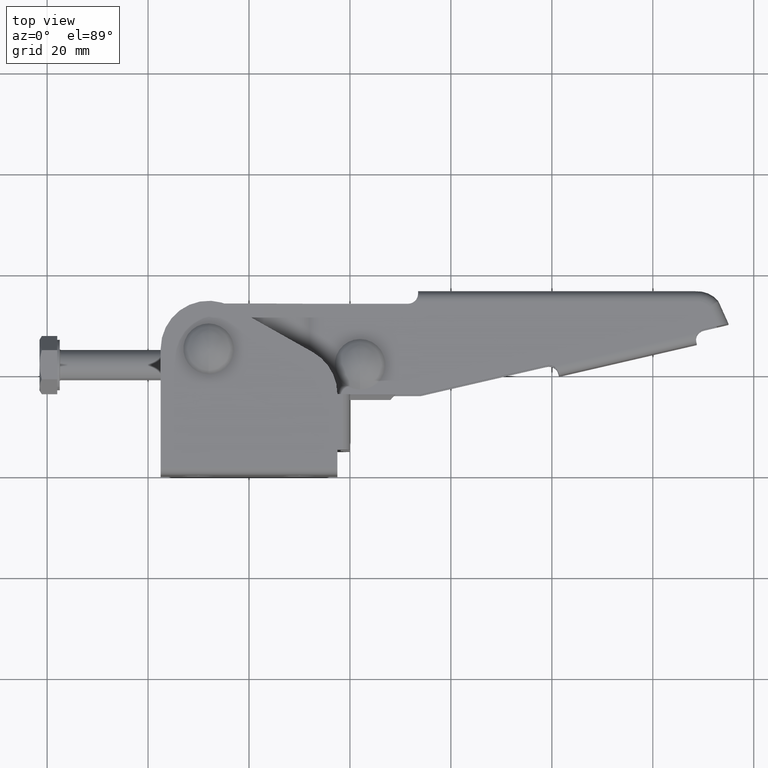
[diagram: clean part render]
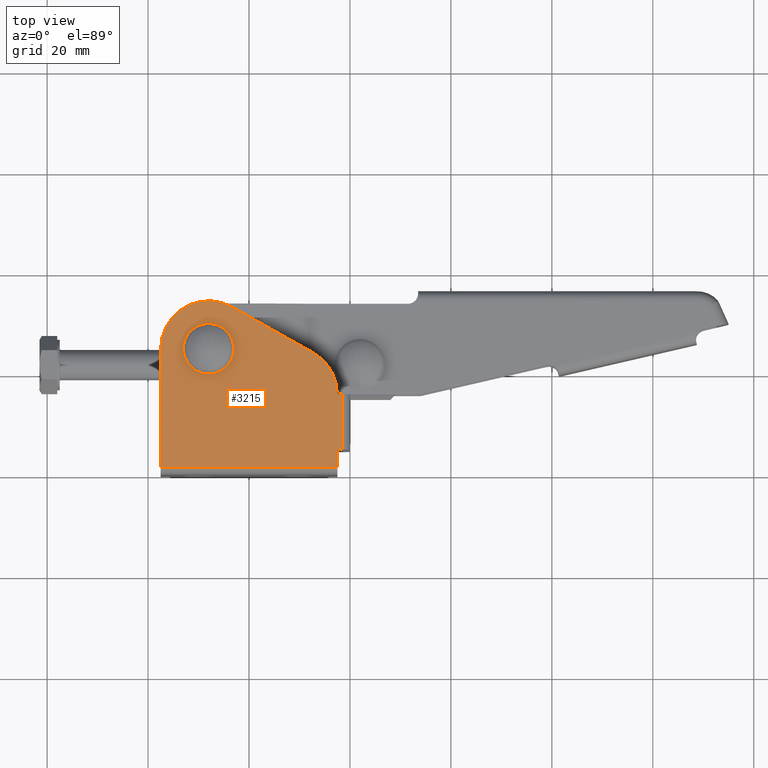
[diagram: same view with one face highlighted and labeled with its STEP entity id]
A machine part, top view. The second image highlights one B-rep face of the part: STEP entity #3215.
In plain terms, the highlighted planar face has unit normal (0, -0, -1).
Its self-contained STEP definition (entity closure, byte-faithful):
#57 = CARTESIAN_POINT ( 'NONE',  ( 17.50000000000000000, 5.000000000000000000, 14.00000000000000500 ) ) ;
#76 = VECTOR ( 'NONE', #4889, 1000.000000000000000 ) ;
#181 = ORIENTED_EDGE ( 'NONE', *, *, #4840, .F. ) ;
#195 = DIRECTION ( 'NONE',  ( 0.0000000000000000000, 1.000000000000000000, -1.826024711554533400E-016 ) ) ;
#237 = DIRECTION ( 'NONE',  ( 0.0000000000000000000, 1.000000000000000000, -1.826024711554533400E-016 ) ) ;
#292 = CARTESIAN_POINT ( 'NONE',  ( 17.50000000000000000, 4.999999992330360000, 14.00000000000000400 ) ) ;
#325 = VECTOR ( 'NONE', #3369, 1000.000000000000000 ) ;
#334 = CIRCLE ( 'NONE', #3872, 5.000000001240477100 ) ;
#392 = DIRECTION ( 'NONE',  ( 0.0000000000000000000, 0.0000000000000000000, 1.000000000000000000 ) ) ;
#416 = CARTESIAN_POINT ( 'NONE',  ( -17.50000000000000000, 38.35080088373390300, 14.00000000000000000 ) ) ;
#630 = VERTEX_POINT ( 'NONE', #6266 ) ;
#639 = CARTESIAN_POINT ( 'NONE',  ( -3.342518223118695600, 33.27996760306676500, 14.00000000000000000 ) ) ;
#691 = CARTESIAN_POINT ( 'NONE',  ( 18.59201648339206900, 5.000000000000000900, 14.00000000000000500 ) ) ;
#835 = AXIS2_PLACEMENT_3D ( 'NONE', #6804, #3513, #237 ) ;
#861 = PLANE ( 'NONE',  #2543 ) ;
#1029 = DIRECTION ( 'NONE',  ( 0.0000000000000000000, 0.0000000000000000000, 1.000000000000000000 ) ) ;
#1059 = CARTESIAN_POINT ( 'NONE',  ( 17.50000000000000000, 16.00000000000000000, 14.00000000000000200 ) ) ;
#1082 = EDGE_CURVE ( 'NONE', #1831, #6965, #4696, .T. ) ;
#1096 = VECTOR ( 'NONE', #5278, 1000.000000000000000 ) ;
#1136 = CARTESIAN_POINT ( 'NONE',  ( -17.50000000000000000, 1.417983516607936400, 14.00000000000000500 ) ) ;
#1400 = EDGE_CURVE ( 'NONE', #6585, #6744, #1681, .T. ) ;
#1411 = DIRECTION ( 'NONE',  ( 0.0000000000000000000, 1.000000000000000000, -1.241390060575497800E-016 ) ) ;
#1522 = CARTESIAN_POINT ( 'NONE',  ( 18.59201648339207600, 16.00000000000000000, 14.00000000000000200 ) ) ;
#1559 = ORIENTED_EDGE ( 'NONE', *, *, #5769, .T. ) ;
#1681 = LINE ( 'NONE', #57, #4435 ) ;
#1831 = VERTEX_POINT ( 'NONE', #4523 ) ;
#1905 = ORIENTED_EDGE ( 'NONE', *, *, #6827, .T. ) ;
#1912 = CARTESIAN_POINT ( 'NONE',  ( -8.000000000000000000, 19.99999999875952400, 14.00000000000000200 ) ) ;
#2056 = DIRECTION ( 'NONE',  ( -0.8715755371245493800, 0.4902612396325587400, -6.086054299652807800E-017 ) ) ;
#2133 = CARTESIAN_POINT ( 'NONE',  ( -8.000000000000000000, 30.00000000124048000, 14.00000000000000200 ) ) ;
#2325 = CARTESIAN_POINT ( 'NONE',  ( -17.50000000000000000, 25.00000000000000000, 14.00000000000000200 ) ) ;
#2435 = EDGE_LOOP ( 'NONE', ( #4807, #6808 ) ) ;
#2481 = CARTESIAN_POINT ( 'NONE',  ( 12.65748177755726900, 24.27996760209374100, 14.00000000000000200 ) ) ;
#2543 = AXIS2_PLACEMENT_3D ( 'NONE', #5229, #4708, #1411 ) ;
#2593 = ORIENTED_EDGE ( 'NONE', *, *, #1082, .F. ) ;
#2604 = ORIENTED_EDGE ( 'NONE', *, *, #4907, .F. ) ;
#2755 = ORIENTED_EDGE ( 'NONE', *, *, #6881, .F. ) ;
#3215 = ADVANCED_FACE ( 'NONE', ( #6021, #3454 ), #861, .F. ) ;
#3320 = EDGE_LOOP ( 'NONE', ( #1559, #2593, #5750, #3596, #2755, #4775, #2604, #1905, #181 ) ) ;
#3369 = DIRECTION ( 'NONE',  ( -1.000000000000000000, -0.0000000000000000000, -0.0000000000000000000 ) ) ;
#3454 = FACE_OUTER_BOUND ( 'NONE', #3320, .T. ) ;
#3466 = DIRECTION ( 'NONE',  ( 0.0000000000000000000, -1.241390060575497800E-016, -1.000000000000000000 ) ) ;
#3511 = VERTEX_POINT ( 'NONE', #2325 ) ;
#3513 = DIRECTION ( 'NONE',  ( 0.0000000000000000000, -1.241390060575497800E-016, -1.000000000000000000 ) ) ;
#3596 = ORIENTED_EDGE ( 'NONE', *, *, #1400, .F. ) ;
#3635 = VECTOR ( 'NONE', #5913, 1000.000000000000000 ) ;
#3668 = CARTESIAN_POINT ( 'NONE',  ( -8.000000000000000000, 25.00000000000000000, 14.00000000000000200 ) ) ;
#3816 = DIRECTION ( 'NONE',  ( -1.000000000000000000, 0.0000000000000000000, 0.0000000000000000000 ) ) ;
#3872 = AXIS2_PLACEMENT_3D ( 'NONE', #4324, #1029, #4869 ) ;
#3880 = DIRECTION ( 'NONE',  ( -1.000000000000000000, 0.0000000000000000000, 0.0000000000000000000 ) ) ;
#3993 = LINE ( 'NONE', #5332, #5265 ) ;
#4035 = LINE ( 'NONE', #6918, #1096 ) ;
#4227 = DIRECTION ( 'NONE',  ( 1.000000000000000000, 0.0000000000000000000, 0.0000000000000000000 ) ) ;
#4324 = CARTESIAN_POINT ( 'NONE',  ( -8.000000000000000000, 25.00000000000000000, 14.00000000000000200 ) ) ;
#4435 = VECTOR ( 'NONE', #3880, 1000.000000000000000 ) ;
#4516 = CARTESIAN_POINT ( 'NONE',  ( 18.59201648339207600, 16.00000000000000000, 14.00000000000000200 ) ) ;
#4523 = CARTESIAN_POINT ( 'NONE',  ( 17.50000000000000000, 1.417983516607932600, 14.00000000000000400 ) ) ;
#4696 = LINE ( 'NONE', #1136, #325 ) ;
#4708 = DIRECTION ( 'NONE',  ( 0.0000000000000000000, -1.241390060575497800E-016, -1.000000000000000000 ) ) ;
#4756 = LINE ( 'NONE', #1059, #6040 ) ;
#4775 = ORIENTED_EDGE ( 'NONE', *, *, #6955, .T. ) ;
#4807 = ORIENTED_EDGE ( 'NONE', *, *, #5084, .F. ) ;
#4840 = EDGE_CURVE ( 'NONE', #3511, #5917, #6510, .T. ) ;
#4869 = DIRECTION ( 'NONE',  ( 1.000000000000000000, 0.0000000000000000000, 0.0000000000000000000 ) ) ;
#4889 = DIRECTION ( 'NONE',  ( 0.0000000000000000000, -1.000000000000000000, 1.241390060575497800E-016 ) ) ;
#4907 = EDGE_CURVE ( 'NONE', #4994, #630, #6170, .T. ) ;
#4994 = VERTEX_POINT ( 'NONE', #2481 ) ;
#5051 = EDGE_CURVE ( 'NONE', #6744, #1831, #4035, .T. ) ;
#5084 = EDGE_CURVE ( 'NONE', #5480, #7058, #6594, .T. ) ;
#5110 = LINE ( 'NONE', #1522, #3635 ) ;
#5229 = CARTESIAN_POINT ( 'NONE',  ( 20.01000000000000900, 38.35080088373390300, 14.00000000000000000 ) ) ;
#5265 = VECTOR ( 'NONE', #2056, 1000.000000000000100 ) ;
#5278 = DIRECTION ( 'NONE',  ( 0.0000000000000000000, -1.000000000000000000, 1.241390060575497800E-016 ) ) ;
#5332 = CARTESIAN_POINT ( 'NONE',  ( -3.342518222999999500, 33.27996760299999600, 14.00000000000000000 ) ) ;
#5448 = EDGE_CURVE ( 'NONE', #7058, #5480, #334, .T. ) ;
#5480 = VERTEX_POINT ( 'NONE', #2133 ) ;
#5750 = ORIENTED_EDGE ( 'NONE', *, *, #5051, .F. ) ;
#5769 = EDGE_CURVE ( 'NONE', #3511, #6965, #5899, .T. ) ;
#5899 = LINE ( 'NONE', #416, #76 ) ;
#5913 = DIRECTION ( 'NONE',  ( 0.0000000000000000000, -1.000000000000000000, 0.0000000000000000000 ) ) ;
#5917 = VERTEX_POINT ( 'NONE', #639 ) ;
#5948 = VERTEX_POINT ( 'NONE', #4516 ) ;
#5985 = AXIS2_PLACEMENT_3D ( 'NONE', #3668, #392, #4227 ) ;
#6021 = FACE_BOUND ( 'NONE', #2435, .T. ) ;
#6036 = CARTESIAN_POINT ( 'NONE',  ( -17.50000000000000000, 1.417983516607934600, 14.00000000000000500 ) ) ;
#6040 = VECTOR ( 'NONE', #3816, 1000.000000000000000 ) ;
#6170 = CIRCLE ( 'NONE', #835, 9.500000000000001800 ) ;
#6266 = CARTESIAN_POINT ( 'NONE',  ( 17.50000000000000000, 16.00000000000000000, 14.00000000000000200 ) ) ;
#6510 = CIRCLE ( 'NONE', #6871, 9.500000000000001800 ) ;
#6585 = VERTEX_POINT ( 'NONE', #691 ) ;
#6594 = CIRCLE ( 'NONE', #5985, 5.000000001240477100 ) ;
#6744 = VERTEX_POINT ( 'NONE', #292 ) ;
#6752 = CARTESIAN_POINT ( 'NONE',  ( -8.000000000000000000, 25.00000000000000000, 14.00000000000000200 ) ) ;
#6804 = CARTESIAN_POINT ( 'NONE',  ( 8.000000000000000000, 16.00000000000000000, 14.00000000000000400 ) ) ;
#6808 = ORIENTED_EDGE ( 'NONE', *, *, #5448, .F. ) ;
#6827 = EDGE_CURVE ( 'NONE', #4994, #5917, #3993, .T. ) ;
#6871 = AXIS2_PLACEMENT_3D ( 'NONE', #6752, #3466, #195 ) ;
#6881 = EDGE_CURVE ( 'NONE', #5948, #6585, #5110, .T. ) ;
#6918 = CARTESIAN_POINT ( 'NONE',  ( 17.50000000000000000, 2.510000000000002900, 14.00000000000000400 ) ) ;
#6955 = EDGE_CURVE ( 'NONE', #5948, #630, #4756, .T. ) ;
#6965 = VERTEX_POINT ( 'NONE', #6036 ) ;
#7058 = VERTEX_POINT ( 'NONE', #1912 ) ;